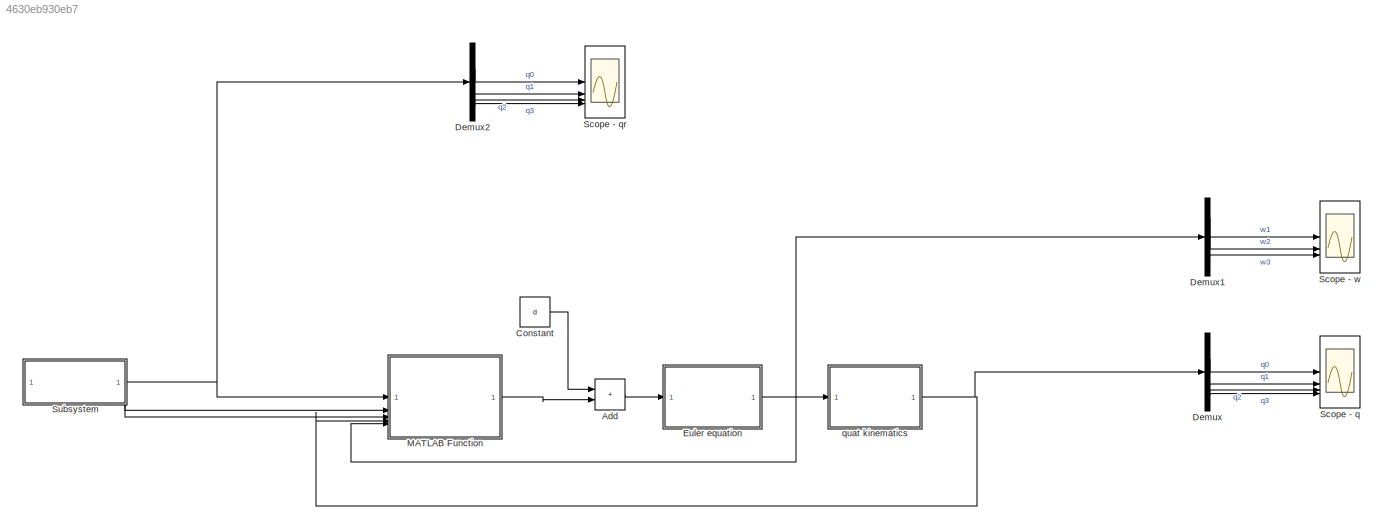
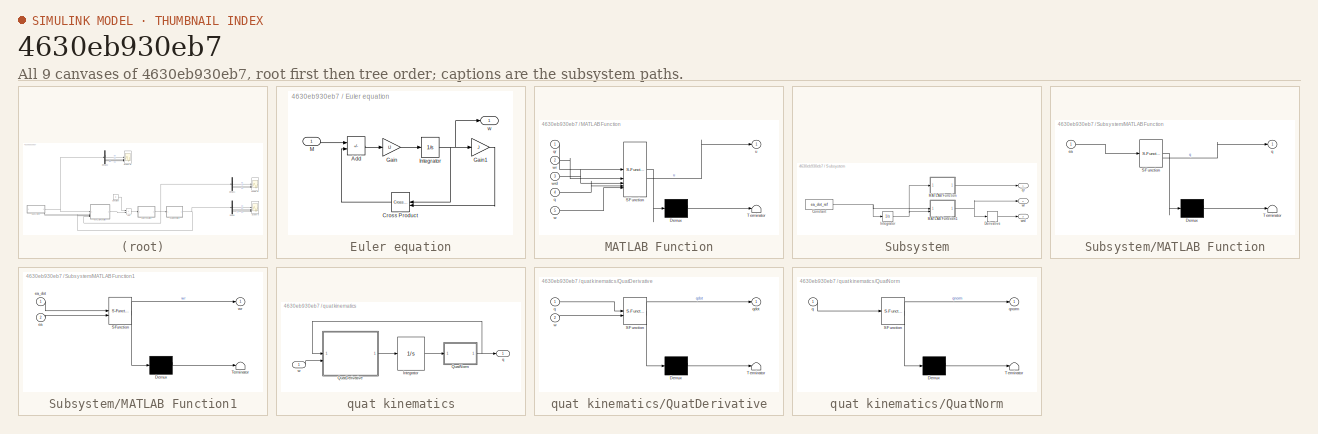
[diagram: thumbnail index - all 9 canvases of the model, root first then tree order]
MODEL slx_4630eb930eb7
KIND model
CONFIG AbsTol = auto
CONFIG EnableMultiTasking = off
CONFIG FixedStep = auto
CONFIG MaxStep = auto
CONFIG MinStep = auto
CONFIG RelTol = 1e-3
CONFIG SampleTimeConstraint = Unconstrained
CONFIG SolverName = VariableStepAuto
CONFIG StartTime = 0.0
CONFIG StopTime = 200
BLOCK [Sum] Add
  IconShape = rectangular
BLOCK [Constant] Constant
  Value = d
BLOCK [Demux] Demux
BLOCK [Demux] Demux1
  Outputs = 3
BLOCK [Demux] Demux2
BLOCK [SubSystem] Euler equation
  AncestorBlock = lib_rotations_2014/Euler equation
BLOCK [Sum] Euler equation/Add
  IconShape = rectangular
  Inputs = +-
BLOCK [Reference] Euler equation/Cross Product  REF=vrlib/Utilities/Cross Product
  NameLocation = top
  SourceBlock = vrlib/Utilities/Cross Product
  SourceType = Cross Product
BLOCK [Gain] Euler equation/Gain
  Gain = IJ
  Multiplication = Matrix(K*u)
BLOCK [Gain] Euler equation/Gain1
  Gain = J
  Multiplication = Matrix(K*u)
BLOCK [Integrator] Euler equation/Integrator
  InitialCondition = w0
BLOCK [Inport] Euler equation/M
BLOCK [Outport] Euler equation/w
  PortDimensions = 3
  VectorParamsAs1DForOutWhenUnconnected = off
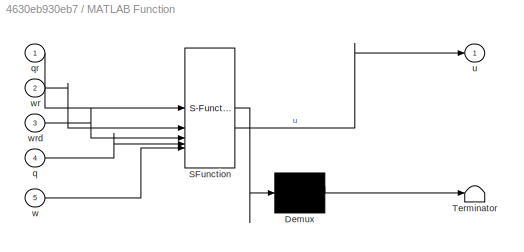
BLOCK [SubSystem] MATLAB Function
  ErrorFcn = Stateflow.Translate.translate
  PermitHierarchicalResolution = ExplicitOnly
  SFBlockType = MATLAB Function
  TreatAsAtomicUnit = on
BLOCK [Demux] MATLAB Function/ Demux 
  Outputs = 1
BLOCK [S-Function] MATLAB Function/ SFunction 
  EnableBusSupport = on
  FunctionName = sf_sfun
  PortCounts = [5 2]
  SFcnIsStateOwnerBlock = off
  SFunctionDeploymentMode = off
  Tag = Stateflow S-Function 3
BLOCK [Terminator] MATLAB Function/ Terminator 
BLOCK [Inport] MATLAB Function/q
  Port = 4
BLOCK [Inport] MATLAB Function/qr
BLOCK [Outport] MATLAB Function/u
BLOCK [Inport] MATLAB Function/w
  Port = 5
BLOCK [Inport] MATLAB Function/wr
  Port = 2
BLOCK [Inport] MATLAB Function/wrd
  Port = 3
BLOCK [Scope] Scope - q
  Floating = off
  NumInputPorts = 4
  ScopeSpecificationString = Simulink.scopes.TimeScopeBlockCfg('CurrentConfiguration', extmgr.ConfigurationSet(extmgr.Configuration('Core','General UI',true),extmgr.Configuration('Core','Source UI',true),extmgr.Configuration('Sources','WiredSimulink',true,'DataLoggingVariableName','ScopeData1'),extmgr.Configuration('Visuals','Time Domain',true,'SerializedDisplays',{struct('MinYLimReal','-1.22393','MaxYLimReal','1.20896','YLab...<+3477ch>
BLOCK [Scope] Scope - qr
  Floating = off
  NumInputPorts = 4
  ScopeSpecificationString = Simulink.scopes.TimeScopeBlockCfg('CurrentConfiguration', extmgr.ConfigurationSet(extmgr.Configuration('Core','General UI',true),extmgr.Configuration('Core','Source UI',true),extmgr.Configuration('Sources','WiredSimulink',true),extmgr.Configuration('Visuals','Time Domain',true,'SerializedDisplays',{struct('MinYLimReal','-1.22581','MaxYLimReal','1.22596','YLabelReal','','MinYLimMag','0.00000','MaxY...<+3436ch>
BLOCK [Scope] Scope - w
  Floating = off
  NumInputPorts = 3
  ScopeSpecificationString = Simulink.scopes.TimeScopeBlockCfg('CurrentConfiguration', extmgr.ConfigurationSet(extmgr.Configuration('Core','General UI',true),extmgr.Configuration('Core','Source UI',true),extmgr.Configuration('Sources','WiredSimulink',true,'DataLoggingVariableName','ScopeData2'),extmgr.Configuration('Visuals','Time Domain',true,'SerializedDisplays',{struct('MinYLimReal','-0.06602','MaxYLimReal','0.11845','YLab...<+2785ch>
BLOCK [SubSystem] Subsystem
BLOCK [Constant] Subsystem/Constant
  Value = ea_dot_ref
BLOCK [Derivative] Subsystem/Derivative
BLOCK [Integrator] Subsystem/Integrator
  InitialCondition = ea0
BLOCK [SubSystem] Subsystem/MATLAB Function
  ErrorFcn = Stateflow.Translate.translate
  PermitHierarchicalResolution = ExplicitOnly
  SFBlockType = MATLAB Function
  TreatAsAtomicUnit = on
BLOCK [Demux] Subsystem/MATLAB Function/ Demux 
  Outputs = 1
BLOCK [S-Function] Subsystem/MATLAB Function/ SFunction 
  EnableBusSupport = on
  FunctionName = sf_sfun
  PortCounts = [1 2]
  SFcnIsStateOwnerBlock = off
  SFunctionDeploymentMode = off
  Tag = Stateflow S-Function 4
BLOCK [Terminator] Subsystem/MATLAB Function/ Terminator 
BLOCK [Inport] Subsystem/MATLAB Function/ea
BLOCK [Outport] Subsystem/MATLAB Function/q
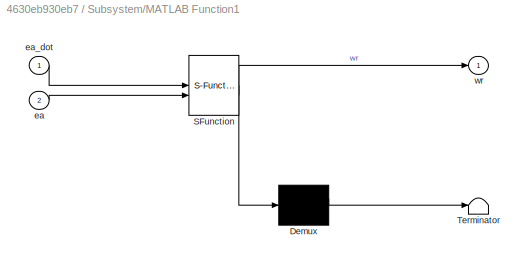
BLOCK [SubSystem] Subsystem/MATLAB Function1
  ErrorFcn = Stateflow.Translate.translate
  PermitHierarchicalResolution = ExplicitOnly
  SFBlockType = MATLAB Function
  TreatAsAtomicUnit = on
BLOCK [Demux] Subsystem/MATLAB Function1/ Demux 
  Outputs = 1
BLOCK [S-Function] Subsystem/MATLAB Function1/ SFunction 
  EnableBusSupport = on
  FunctionName = sf_sfun
  PortCounts = [2 2]
  SFcnIsStateOwnerBlock = off
  SFunctionDeploymentMode = off
  Tag = Stateflow S-Function 5
BLOCK [Terminator] Subsystem/MATLAB Function1/ Terminator 
BLOCK [Inport] Subsystem/MATLAB Function1/ea
  Port = 2
BLOCK [Inport] Subsystem/MATLAB Function1/ea_dot
BLOCK [Outport] Subsystem/MATLAB Function1/wr
BLOCK [Outport] Subsystem/qr
BLOCK [Outport] Subsystem/wr
  Port = 2
BLOCK [Outport] Subsystem/wrd
  Port = 3
BLOCK [SubSystem] quat kinematics
  AncestorBlock = lib_rotations_2014/quat kinematics
BLOCK [Integrator] quat kinematics/Integrator
  InitialCondition = q0
BLOCK [SubSystem] quat kinematics/QuatDerivative
  ErrorFcn = Stateflow.Translate.translate
  PermitHierarchicalResolution = ExplicitOnly
  SFBlockType = MATLAB Function
  TreatAsAtomicUnit = on
BLOCK [Demux] quat kinematics/QuatDerivative/ Demux 
  Outputs = 1
BLOCK [S-Function] quat kinematics/QuatDerivative/ SFunction 
  EnableBusSupport = on
  FunctionName = sf_sfun
  PortCounts = [2 2]
  SFcnIsStateOwnerBlock = off
  SFunctionDeploymentMode = off
  Tag = Stateflow S-Function 1
BLOCK [Terminator] quat kinematics/QuatDerivative/ Terminator 
BLOCK [Inport] quat kinematics/QuatDerivative/q
BLOCK [Outport] quat kinematics/QuatDerivative/qdot
  VectorParamsAs1DForOutWhenUnconnected = off
BLOCK [Inport] quat kinematics/QuatDerivative/w
  Port = 2
BLOCK [SubSystem] quat kinematics/QuatNorm
  ErrorFcn = Stateflow.Translate.translate
  PermitHierarchicalResolution = ExplicitOnly
  SFBlockType = MATLAB Function
  TreatAsAtomicUnit = on
BLOCK [Demux] quat kinematics/QuatNorm/ Demux 
  Outputs = 1
BLOCK [S-Function] quat kinematics/QuatNorm/ SFunction 
  EnableBusSupport = on
  FunctionName = sf_sfun
  PortCounts = [1 2]
  SFcnIsStateOwnerBlock = off
  SFunctionDeploymentMode = off
  Tag = Stateflow S-Function 2
BLOCK [Terminator] quat kinematics/QuatNorm/ Terminator 
BLOCK [Inport] quat kinematics/QuatNorm/q
BLOCK [Outport] quat kinematics/QuatNorm/qnorm
  VectorParamsAs1DForOutWhenUnconnected = off
BLOCK [Outport] quat kinematics/q
  PortDimensions = 4
  VectorParamsAs1DForOutWhenUnconnected = off
BLOCK [Inport] quat kinematics/w
  PortDimensions = 3
LINE Add:1 -> Euler equation:1
LINE Constant:1 -> Add:1
LINE Demux1:1 -> Scope - w:1
LINE Demux1:2 -> Scope - w:2
LINE Demux1:3 -> Scope - w:3
LINE Demux2:1 -> Scope - qr:1
LINE Demux2:2 -> Scope - qr:2
LINE Demux2:3 -> Scope - qr:3
LINE Demux2:4 -> Scope - qr:4
LINE Demux:1 -> Scope - q:1
LINE Demux:2 -> Scope - q:2
LINE Demux:3 -> Scope - q:3
LINE Demux:4 -> Scope - q:4
NET Euler equation:1 -> Demux1:1, MATLAB Function:5, quat kinematics:1
LINE MATLAB Function:1 -> Add:2
NET Subsystem/Constant:1 -> Subsystem/Integrator:1, Subsystem/MATLAB Function1:1
LINE Subsystem/Derivative:1 -> Subsystem/wrd:1
NET Subsystem/Integrator:1 -> Subsystem/MATLAB Function1:2, Subsystem/MATLAB Function:1
NET Subsystem/MATLAB Function1:1 -> Subsystem/Derivative:1, Subsystem/wr:1
LINE Subsystem/MATLAB Function:1 -> Subsystem/qr:1
NET Subsystem:1 -> Demux2:1, MATLAB Function:1
LINE Subsystem:2 -> MATLAB Function:2
LINE Subsystem:3 -> MATLAB Function:3
NET quat kinematics:1 -> Demux:1, MATLAB Function:4
note: NET lines group one-source signal fan-out (src -> all destinations, sorted); 1:1 wires keep LINE
CHART quat kinematics/QuatDerivative states=1 transitions=1
  STATE_LABEL 'eML_blk_kernel()'
  STATE_LABEL 'SCRIPT:\nfunction qdot= QuatDerivative(q,w)\n%#codegen\nomegaq=[0; w];\nQ=[q(1) -q(2) -q(3) -q(4);\n    q(2) q(1) -q(4) q(3);\n    q(3) q(4) q(1) -q(2);\n    q(4) -q(3) q(2) q(1)];\nqdot=Q*omegaq/2;\n'
CHART quat kinematics/QuatNorm states=1 transitions=1
  STATE_LABEL 'eML_blk_kernel()'
  STATE_LABEL "SCRIPT:\nfunction qnorm = QuatNorm(q)\n%#codegen\nqnorm=zeros(4,1);\nq2=sqrt(q'*q);\nqnorm=q/q2;\n"
CHART MATLAB Function states=1 transitions=1
  STATE_LABEL 'eML_blk_kernel()'
  STATE_LABEL 'SCRIPT:\nfunction u = controller(qr, wr, wrd, q, w)\n\nw_tilde = wr - w;\nq_star = [q(1);-q(2:4)]; q_tilde = quatprod(q_star,qr);\n\n% Controller parameters\nk1 = 1;\nk2 = 1;\neta = 1;\n\nJ = [399 -2.81 -1.31;\n    -2.81 377 2.54;\n    -1.31 2.54 377];\n\ns = w_tilde + k2*q_tilde(2:4); %sliding surface\n\n% Linearization command\nus = J*(wrd + (k2/2)*(q_tilde(1)*w_tilde + cross(q_tilde(2:4),(wr+w)))) + cross(w,J*w)...<+179ch>'
CHART Subsystem/MATLAB Function states=1 transitions=1
  STATE_LABEL 'eML_blk_kernel()'
  STATE_LABEL "SCRIPT:\nfunction q = euler2quat(ea)\nph=ea(1);\nth=ea(2);\nps=ea(3);\n\n\nq1=[cos(ph/2);0;0;sin(ph/2)];\nq2=[cos(th/2);sin(th/2);0;0];\nq3=[cos(ps/2);0;0;sin(ps/2)];\n\nq=quatprod(q1,quatprod(q2,q3));\nend\n\nfunction r=quatprod(q,p)\n\nqq=[0 -q(4) q(3);\n    q(4) 0 -q(2);\n    -q(3) q(2) 0];\n\nQ=[q(1) -q(2:4)'; \n    q(2:4) q(1)*eye(3)+qq];\n\nr=Q*p;\n\nend"
CHART Subsystem/MATLAB Function1 states=1 transitions=1
  STATE_LABEL 'eML_blk_kernel()'
  STATE_LABEL 'SCRIPT:\nfunction wr = kin_eq(ea_dot, ea)\n\nph = ea(1);\nth = ea(2); \nps = ea(3);\n\nT = [sin(th)*sin(ps) cos(ps) 0;\n    sin(th)*cos(ps) -sin(ps) 0;\n    cos(th) 0 1];    \n   \nwr = T*ea_dot;\nend\n'
CHART  states=0 transitions=0
CHART  states=0 transitions=0
CHART  states=0 transitions=0
CHART  states=0 transitions=0
CHART  states=0 transitions=0
